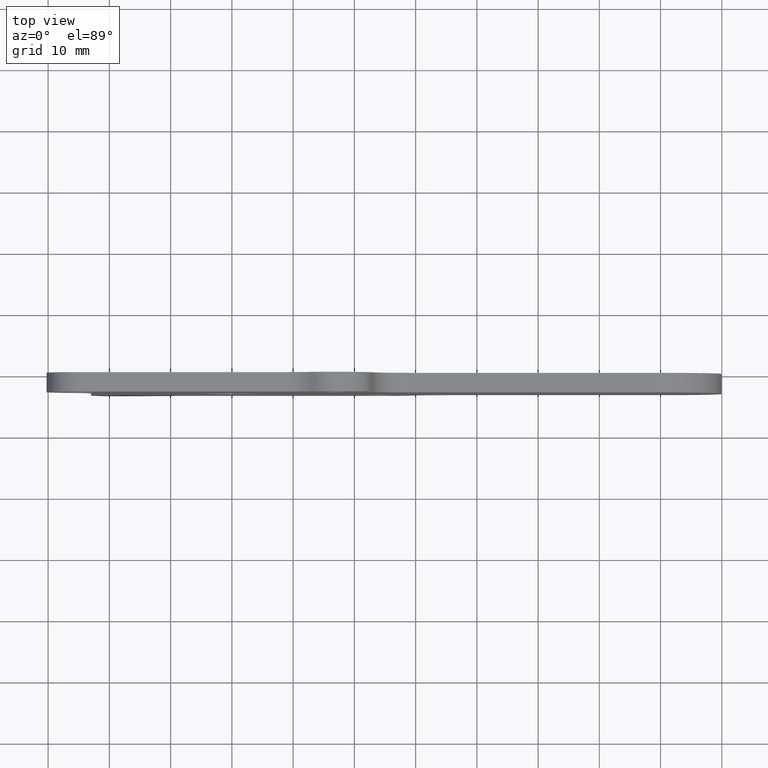
[diagram: clean part render]
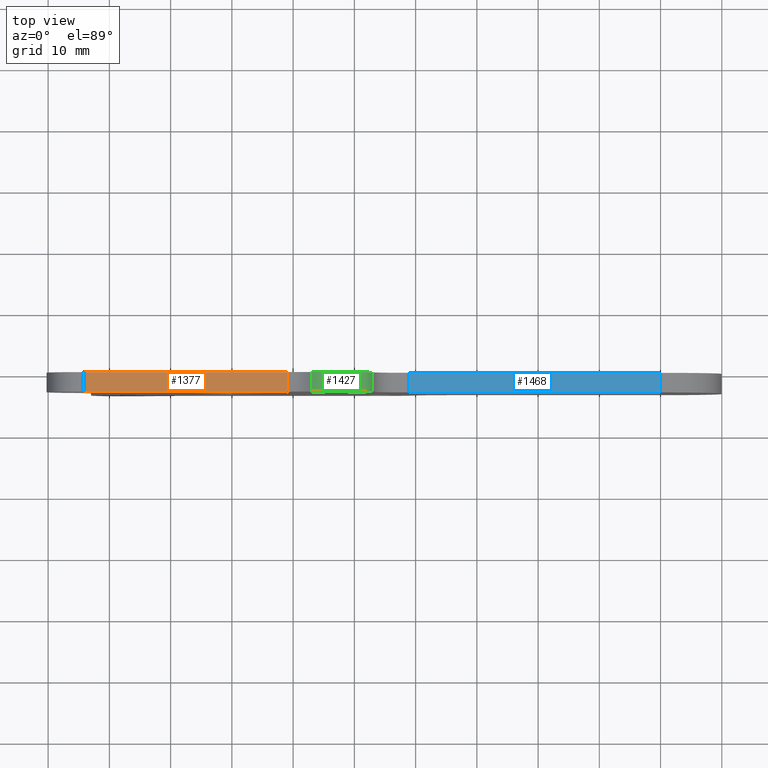
[diagram: same view with three faces highlighted in distinct colors, each labeled with its STEP entity id]
A machine part, top view with three faces highlighted in distinct colors.
Their STEP definitions:

[orange] entity #1377 — the highlighted face is a freeform B-spline surface patch.
#777=CARTESIAN_POINT('',(-24.250000000000000,0.0,20.0));
#778=VERTEX_POINT('',#777);
#796=CARTESIAN_POINT('',(9.062745999999788,0.0,20.0));
#797=VERTEX_POINT('',#796);
#798=CARTESIAN_POINT('',(9.062745999999788,0.0,20.0));
#799=CARTESIAN_POINT('',(-24.250000000000000,0.0,20.0));
#800=QUASI_UNIFORM_CURVE('',1,(#798,#799),.UNSPECIFIED.,.F.,.U.);
#801=EDGE_CURVE('',#797,#778,#800,.T.);
#1060=CARTESIAN_POINT('',(-24.250000000000000,-3.200000000000000,20.0));
#1061=VERTEX_POINT('',#1060);
#1261=CARTESIAN_POINT('',(9.062745999999788,-3.200000000000000,20.0));
#1262=VERTEX_POINT('',#1261);
#1276=CARTESIAN_POINT('',(9.062745999999788,-3.200000000000000,20.0));
#1277=CARTESIAN_POINT('',(-24.250000000000000,-3.200000000000000,20.0));
#1278=QUASI_UNIFORM_CURVE('',1,(#1276,#1277),.UNSPECIFIED.,.F.,.U.);
#1279=EDGE_CURVE('',#1262,#1061,#1278,.T.);
#1358=CARTESIAN_POINT('',(10.726717598133209,-3.359840053876400,20.0));
#1359=CARTESIAN_POINT('',(-25.913972491650899,-3.359840053876400,20.0));
#1360=CARTESIAN_POINT('',(10.726717598133209,0.159840082486629,20.0));
#1361=CARTESIAN_POINT('',(-25.913972491650899,0.159840082486629,20.0));
#1362=B_SPLINE_SURFACE_WITH_KNOTS('',1,1,((#1358,#1360),(#1359,#1361)),.UNSPECIFIED.,.F.,.F.,.U.,(2,2),(2,2),(0.0,36.640690089784123),(0.0,3.519680136363029),.UNSPECIFIED.);
#1363=ORIENTED_EDGE('',*,*,#801,.T.);
#1364=CARTESIAN_POINT('',(-24.250000000000000,-3.200000000000000,20.0));
#1365=CARTESIAN_POINT('',(-24.250000000000000,0.0,20.0));
#1366=QUASI_UNIFORM_CURVE('',1,(#1364,#1365),.UNSPECIFIED.,.F.,.U.);
#1367=EDGE_CURVE('',#1061,#778,#1366,.T.);
#1368=ORIENTED_EDGE('',*,*,#1367,.F.);
#1369=ORIENTED_EDGE('',*,*,#1279,.F.);
#1370=CARTESIAN_POINT('',(9.062745999999788,-3.200000000000000,20.0));
#1371=CARTESIAN_POINT('',(9.062745999999788,0.0,20.0));
#1372=QUASI_UNIFORM_CURVE('',1,(#1370,#1371),.UNSPECIFIED.,.F.,.U.);
#1373=EDGE_CURVE('',#1262,#797,#1372,.T.);
#1374=ORIENTED_EDGE('',*,*,#1373,.T.);
#1375=EDGE_LOOP('',(#1363,#1368,#1369,#1374));
#1376=FACE_OUTER_BOUND('',#1375,.T.);
#1377=ADVANCED_FACE('',(#1376),#1362,.F.);

[blue] entity #1468 — the highlighted face is a freeform B-spline surface patch.
#835=CARTESIAN_POINT('',(28.832159490147600,0.0,12.999999938013421));
#836=VERTEX_POINT('',#835);
#850=CARTESIAN_POINT('',(69.935685229771096,0.0,12.999999938013421));
#851=VERTEX_POINT('',#850);
#852=CARTESIAN_POINT('',(69.935685229771096,0.0,12.999999938013421));
#853=CARTESIAN_POINT('',(28.832159490147600,0.0,12.999999938013421));
#854=QUASI_UNIFORM_CURVE('',1,(#852,#853),.UNSPECIFIED.,.F.,.U.);
#855=EDGE_CURVE('',#851,#836,#854,.T.);
#1207=CARTESIAN_POINT('',(69.935685229771096,-3.200000000000000,12.999999938013421));
#1208=VERTEX_POINT('',#1207);
#1222=CARTESIAN_POINT('',(28.832159490147600,-3.200000000000000,12.999999938013421));
#1223=VERTEX_POINT('',#1222);
#1224=CARTESIAN_POINT('',(69.935685229771096,-3.200000000000000,12.999999938013421));
#1225=CARTESIAN_POINT('',(28.832159490147600,-3.200000000000000,12.999999938013421));
#1226=QUASI_UNIFORM_CURVE('',1,(#1224,#1225),.UNSPECIFIED.,.F.,.U.);
#1227=EDGE_CURVE('',#1208,#1223,#1226,.T.);
#1445=CARTESIAN_POINT('',(28.832159490147600,-3.200000000000000,12.999999938013421));
#1446=CARTESIAN_POINT('',(28.832159490147600,0.0,12.999999938013421));
#1447=QUASI_UNIFORM_CURVE('',1,(#1445,#1446),.UNSPECIFIED.,.F.,.U.);
#1448=EDGE_CURVE('',#1223,#836,#1447,.T.);
#1453=CARTESIAN_POINT('',(71.988805489097700,-3.359840053876400,12.999999938013421));
#1454=CARTESIAN_POINT('',(26.779037393350212,-3.359840053876400,12.999999938013421));
#1455=CARTESIAN_POINT('',(71.988805489097700,0.159840082486629,12.999999938013421));
#1456=CARTESIAN_POINT('',(26.779037393350212,0.159840082486629,12.999999938013421));
#1457=B_SPLINE_SURFACE_WITH_KNOTS('',1,1,((#1453,#1455),(#1454,#1456)),.UNSPECIFIED.,.F.,.F.,.U.,(2,2),(2,2),(0.0,45.209768095747492),(0.0,3.519680136363029),.UNSPECIFIED.);
#1458=ORIENTED_EDGE('',*,*,#855,.T.);
#1459=ORIENTED_EDGE('',*,*,#1448,.F.);
#1460=ORIENTED_EDGE('',*,*,#1227,.F.);
#1461=CARTESIAN_POINT('',(69.935685229771096,-3.200000000000000,12.999999938013421));
#1462=CARTESIAN_POINT('',(69.935685229771096,0.0,12.999999938013421));
#1463=QUASI_UNIFORM_CURVE('',1,(#1461,#1462),.UNSPECIFIED.,.F.,.U.);
#1464=EDGE_CURVE('',#1208,#851,#1463,.T.);
#1465=ORIENTED_EDGE('',*,*,#1464,.T.);
#1466=EDGE_LOOP('',(#1458,#1459,#1460,#1465));
#1467=FACE_OUTER_BOUND('',#1466,.T.);
#1468=ADVANCED_FACE('',(#1467),#1457,.F.);

[green] entity #1427 — the highlighted face is a freeform B-spline surface patch.
#803=CARTESIAN_POINT('',(13.031372958014700,0.0,21.499999992431150));
#804=VERTEX_POINT('',#803);
#818=CARTESIAN_POINT('',(22.916079703088549,0.0,17.999999961437901));
#819=VERTEX_POINT('',#818);
#820=CARTESIAN_POINT('',(22.916079703088531,0.0,17.999999961437890));
#821=CARTESIAN_POINT('',(22.328118228345623,0.0,21.478427039214264));
#822=CARTESIAN_POINT('',(19.002658944565361,0.0,22.655913422621470));
#823=CARTESIAN_POINT('',(15.677199660785096,0.0,23.833399806028670));
#824=CARTESIAN_POINT('',(13.031372958014710,0.0,21.499999992431139));
#832=(BOUNDED_CURVE()B_SPLINE_CURVE(2,(#820,#821,#822,#823,#824),.UNSPECIFIED.,.F.,.U.)B_SPLINE_CURVE_WITH_KNOTS((3,2,3),(0.0,0.500000000000000,1.0),.UNSPECIFIED.)CURVE()GEOMETRIC_REPRESENTATION_ITEM()RATIONAL_B_SPLINE_CURVE((1.0,0.862037346963936,1.0,0.862037346963936,1.0))REPRESENTATION_ITEM(''));
#833=EDGE_CURVE('',#819,#804,#832,.T.);
#1229=CARTESIAN_POINT('',(22.916079703088549,-3.200000000000000,17.999999961437901));
#1230=VERTEX_POINT('',#1229);
#1244=CARTESIAN_POINT('',(13.031372958014700,-3.200000000000000,21.499999992431150));
#1245=VERTEX_POINT('',#1244);
#1246=CARTESIAN_POINT('',(22.916079703088531,-3.200000000000000,17.999999961437890));
#1247=CARTESIAN_POINT('',(22.328118228345623,-3.200000000000000,21.478427039214264));
#1248=CARTESIAN_POINT('',(19.002658944565361,-3.200000000000000,22.655913422621470));
#1249=CARTESIAN_POINT('',(15.677199660785096,-3.200000000000000,23.833399806028670));
#1250=CARTESIAN_POINT('',(13.031372958014710,-3.200000000000000,21.499999992431139));
#1258=(BOUNDED_CURVE()B_SPLINE_CURVE(2,(#1246,#1247,#1248,#1249,#1250),.UNSPECIFIED.,.F.,.U.)B_SPLINE_CURVE_WITH_KNOTS((3,2,3),(0.0,0.500000000000000,1.0),.UNSPECIFIED.)CURVE()GEOMETRIC_REPRESENTATION_ITEM()RATIONAL_B_SPLINE_CURVE((1.0,0.862037346963936,1.0,0.862037346963936,1.0))REPRESENTATION_ITEM(''));
#1259=EDGE_CURVE('',#1230,#1245,#1258,.T.);
#1395=CARTESIAN_POINT('',(13.031372958014700,-3.200000000000000,21.499999992431150));
#1396=CARTESIAN_POINT('',(13.031372958014700,0.0,21.499999992431150));
#1397=QUASI_UNIFORM_CURVE('',1,(#1395,#1396),.UNSPECIFIED.,.F.,.U.);
#1398=EDGE_CURVE('',#1245,#804,#1397,.T.);
#1403=CARTESIAN_POINT('',(22.940229357997591,-3.280000000000000,17.844792371650371));
#1404=CARTESIAN_POINT('',(22.940229357997591,0.082000000000000,17.844792371650371));
#1405=CARTESIAN_POINT('',(21.282230944716741,-3.280000000000001,29.503149079568029));
#1406=CARTESIAN_POINT('',(21.282230944716741,0.082000000000000,29.503149079568029));
#1407=CARTESIAN_POINT('',(12.824969257176990,-3.280000000000000,21.309190047698099));
#1408=CARTESIAN_POINT('',(12.824969257176990,0.082000000000000,21.309190047698099));
#1416=(BOUNDED_SURFACE()B_SPLINE_SURFACE(1,2,((#1403,#1405,#1407),(#1404,#1406,#1408)),.UNSPECIFIED.,.F.,.F.,.U.)B_SPLINE_SURFACE_WITH_KNOTS((2,2),(3,3),(0.0,3.362000000000001),(0.0,14.707218915358370),.UNSPECIFIED.)GEOMETRIC_REPRESENTATION_ITEM()RATIONAL_B_SPLINE_SURFACE(((1.0,0.453990499739547,1.0),(1.0,0.453990499739547,1.0)))REPRESENTATION_ITEM('')SURFACE());
#1417=ORIENTED_EDGE('',*,*,#833,.T.);
#1418=ORIENTED_EDGE('',*,*,#1398,.F.);
#1419=ORIENTED_EDGE('',*,*,#1259,.F.);
#1420=CARTESIAN_POINT('',(22.916079703088549,-3.200000000000000,17.999999961437901));
#1421=CARTESIAN_POINT('',(22.916079703088549,0.0,17.999999961437901));
#1422=QUASI_UNIFORM_CURVE('',1,(#1420,#1421),.UNSPECIFIED.,.F.,.U.);
#1423=EDGE_CURVE('',#1230,#819,#1422,.T.);
#1424=ORIENTED_EDGE('',*,*,#1423,.T.);
#1425=EDGE_LOOP('',(#1417,#1418,#1419,#1424));
#1426=FACE_OUTER_BOUND('',#1425,.T.);
#1427=ADVANCED_FACE('',(#1426),#1416,.T.);